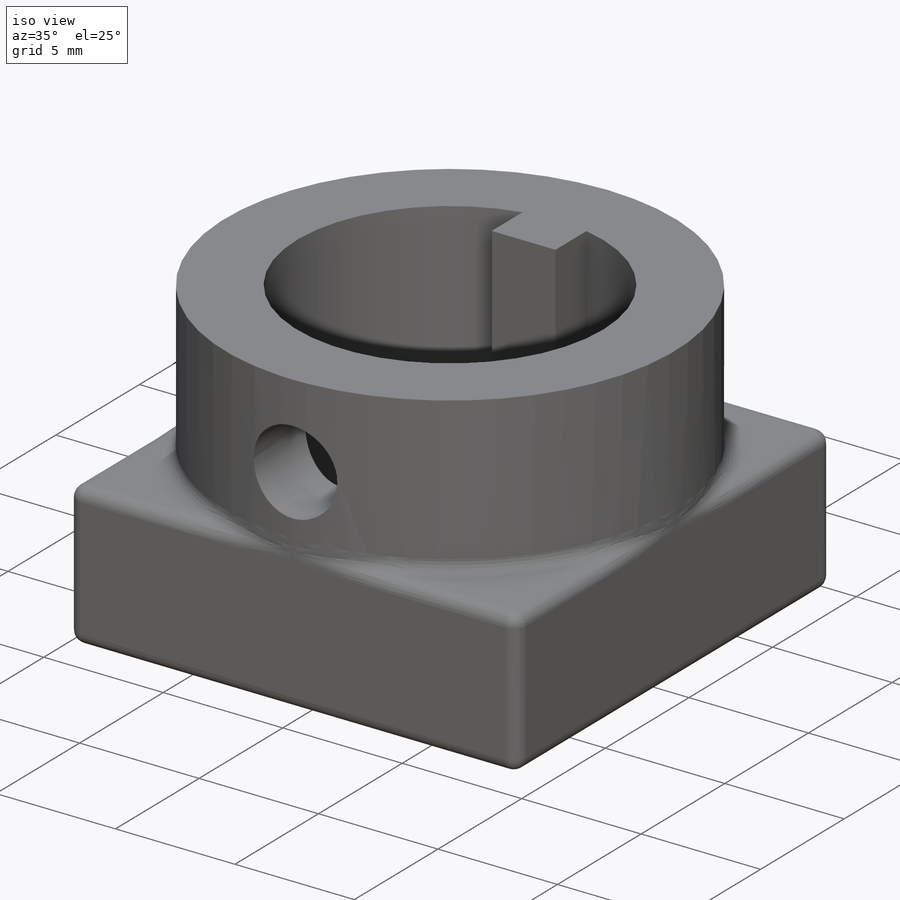
[diagram: iso view]
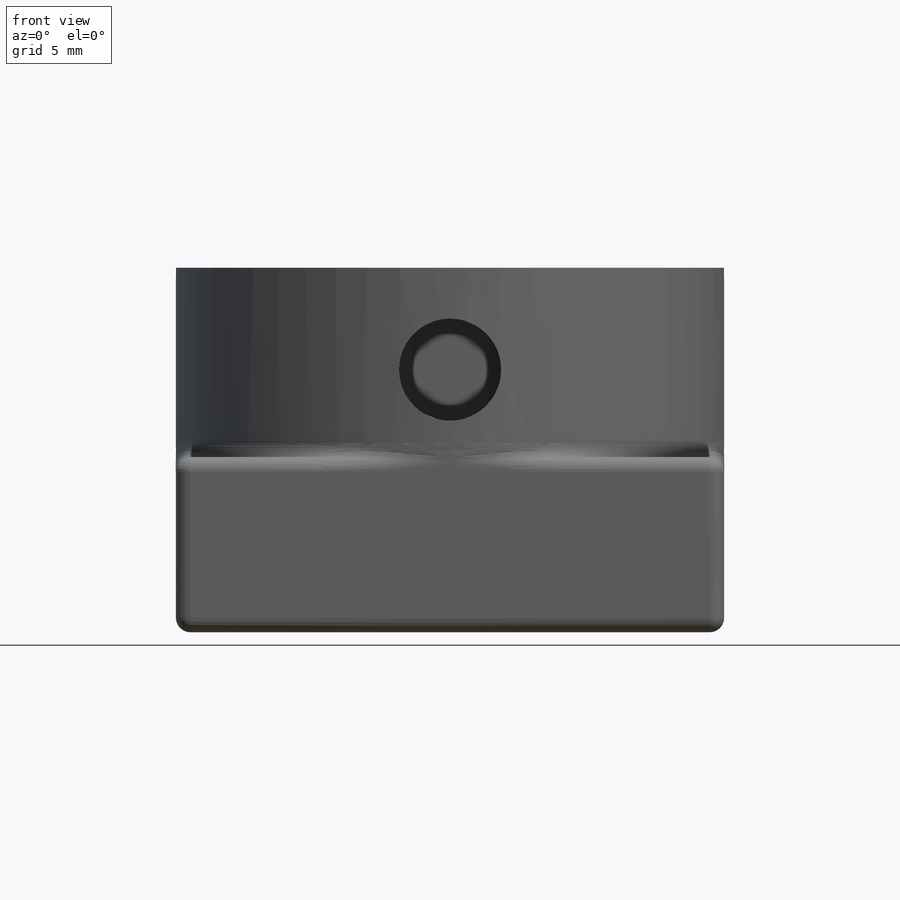
[diagram: front view]
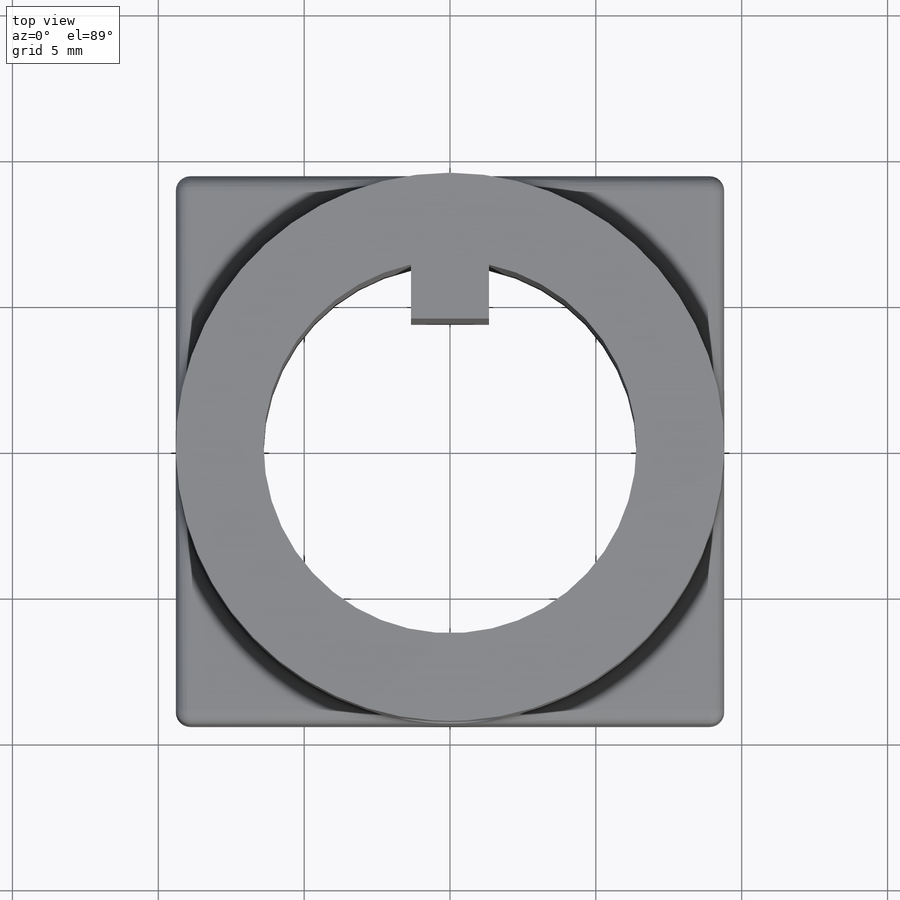
[diagram: top view]
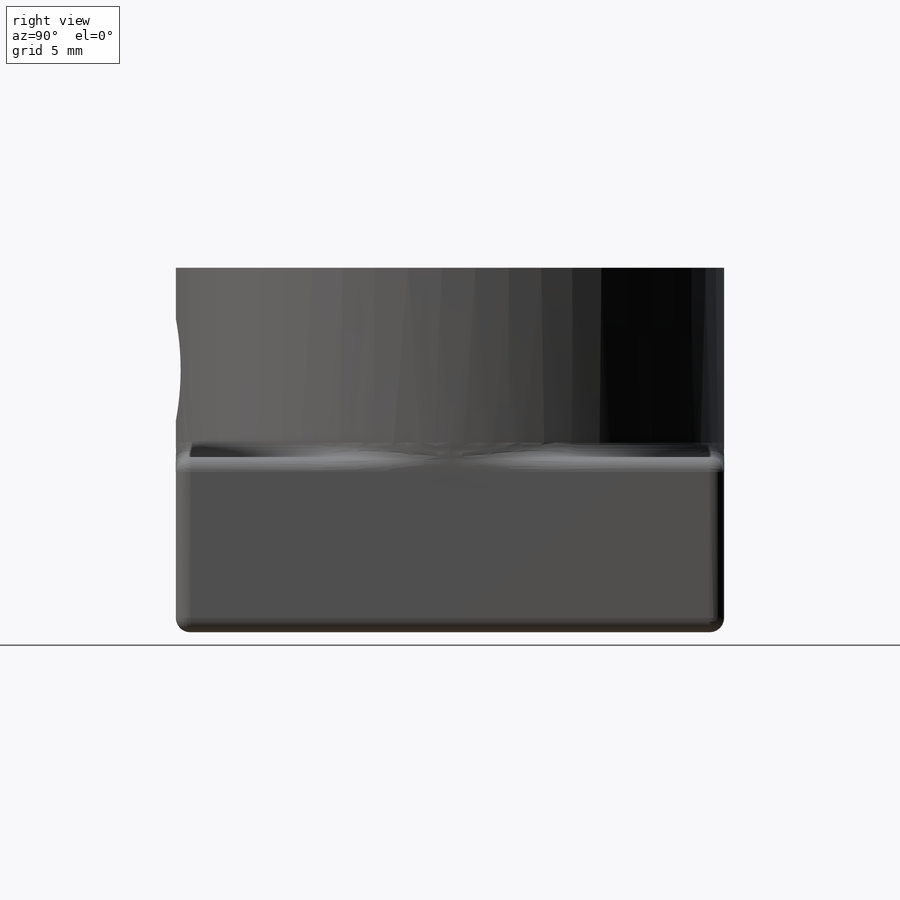
[diagram: right view]
SOLIDWORKS PART (.sldprt)
format: sldprt  version: not decoded by parser v0  size: 466,432 bytes
history: native  units: mm
features: sketch x4, fillet x3, extrude x2, cut_extrude x2, material x1 (+13 scaffold rows collapsed)
feature tree (25):
  scaffold x13  (default folders/planes/origin — collapsed)
  material  "Material <not specified>"
  sketch  "Sketch1"  dims[D1=12.78mm D2=18.8mm D3=1.85mm D4=2.67mm D5=1.335mm]
  extrude  "Boss-Extrude1"  Depth=12.5mm
  sketch  "Sketch2"  dims[c1.D1=2.5mm c1.D2=18.8mm c1.D3=18.8mm c2.D1=18.8mm c2.D2=18.8mm]
  extrude  "Boss-Extrude2"  Depth=6mm
  sketch  "Sketch4"
  cut_extrude  "Cut-Extrude2"  [1 undecoded]
  sketch  "Sketch5"  dims[D1=3.5mm D2=9.0mm]
  cut_extrude  "Cut-Extrude3"  Depth=15mm
  fillet  "Fillet4"  Radius=0.5mm
  fillet  "Fillet5"  Radius=0.5mm
  fillet  "Fillet8"  Radius=0.5mm
decode coverage: 9 of 11 modeling features carry decoded parameters
note: 1 parameter value undecoded
note: suppression state not decoded; provenance and decode notes live in map.json
